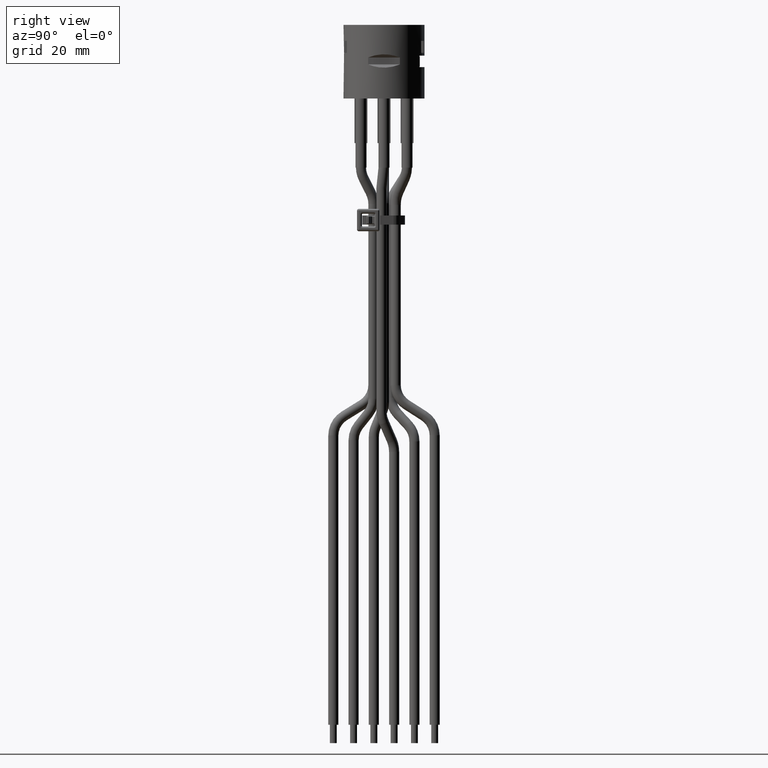
[diagram: clean part render]
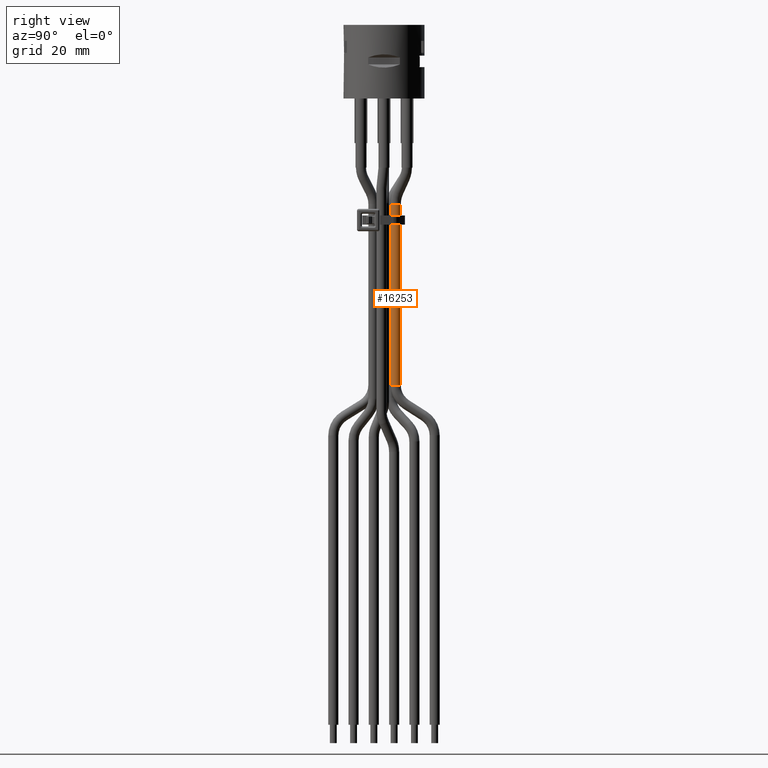
[diagram: same view with one face highlighted and labeled with its STEP entity id]
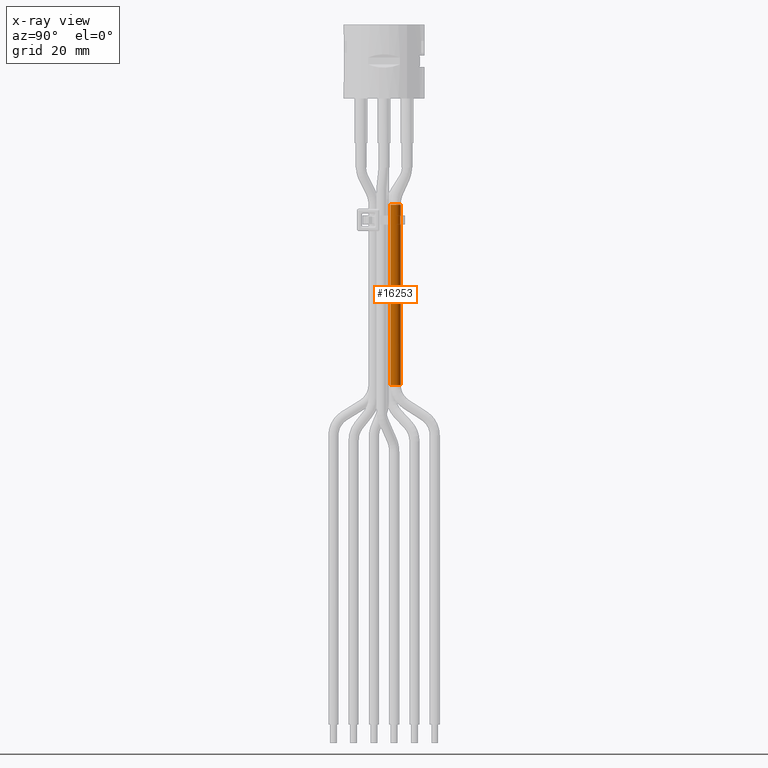
[diagram: x-ray of the same camera — body ghosted, the highlighted face saturated]
A machine part, right view. The second image highlights one B-rep face of the part: STEP entity #16253.
The next image is the same camera in x-ray: the body ghosted, the highlighted face saturated — about 0% of this face is hidden behind the body in this view.
In plain terms, the highlighted cylindrical surface (bore or boss wall) has radius 1.1 mm, axis along (-0, 0, -1).
Its self-contained STEP definition (entity closure, byte-faithful):
#329=FACE_BOUND('',#2485,.T.);
#1611=FACE_OUTER_BOUND('',#2484,.T.);
#2484=EDGE_LOOP('',(#14521,#14522,#14523,#14524,#14525,#14526));
#2485=EDGE_LOOP('',(#14527,#14528,#14529,#14530));
#2802=CIRCLE('',#17065,1.1);
#2816=CIRCLE('',#17104,1.1);
#2904=CIRCLE('',#17284,1.1);
#2905=CIRCLE('',#17285,1.1);
#2906=CIRCLE('',#17287,1.1);
#2907=CIRCLE('',#17288,1.1);
#4631=LINE('',#26224,#6461);
#4633=LINE('',#26231,#6463);
#4758=LINE('',#26935,#6588);
#6461=VECTOR('',#20481,10.);
#6463=VECTOR('',#20489,10.);
#6588=VECTOR('',#21018,1.1);
#7961=VERTEX_POINT('',#26146);
#7962=VERTEX_POINT('',#26148);
#7987=VERTEX_POINT('',#26222);
#7989=VERTEX_POINT('',#26230);
#8116=VERTEX_POINT('',#26928);
#8117=VERTEX_POINT('',#26930);
#8118=VERTEX_POINT('',#26934);
#8119=VERTEX_POINT('',#26936);
#10074=EDGE_CURVE('',#7962,#7961,#2802,.T.);
#10109=EDGE_CURVE('',#7987,#7961,#4631,.T.);
#10112=EDGE_CURVE('',#7989,#7962,#4633,.T.);
#10149=EDGE_CURVE('',#7987,#7989,#2816,.T.);
#10342=EDGE_CURVE('',#8116,#8117,#2904,.T.);
#10343=EDGE_CURVE('',#8117,#8116,#2905,.T.);
#10344=EDGE_CURVE('',#8117,#8118,#4758,.T.);
#10345=EDGE_CURVE('',#8118,#8119,#2906,.T.);
#10346=EDGE_CURVE('',#8119,#8118,#2907,.T.);
#14521=ORIENTED_EDGE('',*,*,#10343,.F.);
#14522=ORIENTED_EDGE('',*,*,#10344,.T.);
#14523=ORIENTED_EDGE('',*,*,#10345,.T.);
#14524=ORIENTED_EDGE('',*,*,#10346,.T.);
#14525=ORIENTED_EDGE('',*,*,#10344,.F.);
#14526=ORIENTED_EDGE('',*,*,#10342,.F.);
#14527=ORIENTED_EDGE('',*,*,#10074,.T.);
#14528=ORIENTED_EDGE('',*,*,#10109,.F.);
#14529=ORIENTED_EDGE('',*,*,#10149,.T.);
#14530=ORIENTED_EDGE('',*,*,#10112,.T.);
#15549=CYLINDRICAL_SURFACE('',#17286,1.1);
#16253=ADVANCED_FACE('',(#1611,#329),#15549,.T.);
#17065=AXIS2_PLACEMENT_3D('',#26149,#20422,#20423);
#17104=AXIS2_PLACEMENT_3D('',#26310,#20557,#20558);
#17284=AXIS2_PLACEMENT_3D('',#26931,#21012,#21013);
#17285=AXIS2_PLACEMENT_3D('',#26932,#21014,#21015);
#17286=AXIS2_PLACEMENT_3D('',#26933,#21016,#21017);
#17287=AXIS2_PLACEMENT_3D('',#26937,#21019,#21020);
#17288=AXIS2_PLACEMENT_3D('',#26938,#21021,#21022);
#20422=DIRECTION('center_axis',(-2.20982533152582E-15,6.5703309714167E-15,
-1.));
#20423=DIRECTION('ref_axis',(-4.99672001971652E-15,1.,5.05196216376714E-15));
#20481=DIRECTION('',(-1.91513471747839E-15,5.05196216376713E-15,-1.));
#20489=DIRECTION('',(-1.91513471747839E-15,5.05196216376713E-15,-1.));
#20557=DIRECTION('center_axis',(2.20982533152582E-15,-6.5703309714167E-15,
1.));
#20558=DIRECTION('ref_axis',(-4.99672001971652E-15,1.,5.05196216376714E-15));
#21012=DIRECTION('center_axis',(-2.0261570199409E-15,5.05196216376713E-15,
-1.));
#21013=DIRECTION('ref_axis',(-4.99672001971651E-15,1.,5.24877442722341E-15));
#21014=DIRECTION('center_axis',(-2.0261570199409E-15,5.05196216376713E-15,
-1.));
#21015=DIRECTION('ref_axis',(-4.99672001971651E-15,1.,5.24877442722341E-15));
#21016=DIRECTION('center_axis',(-1.91513471747839E-15,5.05196216376713E-15,
-1.));
#21017=DIRECTION('ref_axis',(-4.99672001971652E-15,1.,5.05196216376714E-15));
#21018=DIRECTION('',(1.91513471747838E-15,-5.05196216376713E-15,1.));
#21019=DIRECTION('center_axis',(-2.0261570199409E-15,5.05196216376713E-15,
-1.));
#21020=DIRECTION('ref_axis',(-4.99672001971651E-15,1.,5.24877442722341E-15));
#21021=DIRECTION('center_axis',(-2.0261570199409E-15,5.05196216376713E-15,
-1.));
#21022=DIRECTION('ref_axis',(-4.99672001971651E-15,1.,5.24877442722341E-15));
#26146=CARTESIAN_POINT('',(0.477272113006132,3.54106575470384,-27.4));
#26148=CARTESIAN_POINT('',(-0.477272113045943,3.54106575468468,-27.4));
#26149=CARTESIAN_POINT('Origin',(-5.02199898040606E-14,2.55000000000009,
-27.4));
#26222=CARTESIAN_POINT('',(0.477272113006136,3.54106575470383,-25.4));
#26224=CARTESIAN_POINT('',(0.477272113006075,3.54106575470385,-23.0787840581131));
#26230=CARTESIAN_POINT('',(-0.477272113045938,3.54106575468466,-25.4));
#26231=CARTESIAN_POINT('',(-0.477272113045941,3.54106575468464,-23.0787840581131));
#26310=CARTESIAN_POINT('Origin',(-4.63897203691039E-14,2.55000000000008,
-25.4));
#26928=CARTESIAN_POINT('',(-0.00279792959419495,3.64999644162632,-62.2614830639346));
#26930=CARTESIAN_POINT('',(-1.09675161330202E-13,1.45000000000027,-62.2614830639346));
#26931=CARTESIAN_POINT('Origin',(-1.17322610462101E-13,2.55000000000027,
-62.2614830639346));
#26932=CARTESIAN_POINT('Origin',(-1.17322610462101E-13,2.55000000000027,
-62.2614830639346));
#26933=CARTESIAN_POINT('Origin',(-4.1944279132032E-14,2.55000000000007,
-23.0787840581131));
#26934=CARTESIAN_POINT('',(-3.42968300001326E-14,1.45000000000007,-23.0787840581131));
#26935=CARTESIAN_POINT('',(-3.658259825825E-14,1.45000000000007,-23.0787840581131));
#26936=CARTESIAN_POINT('',(0.785634123056706,3.3199214405957,-23.0787840581131));
#26937=CARTESIAN_POINT('Origin',(-4.1944279132032E-14,2.55000000000007,
-23.0787840581131));
#26938=CARTESIAN_POINT('Origin',(-4.1944279132032E-14,2.55000000000007,
-23.0787840581131));